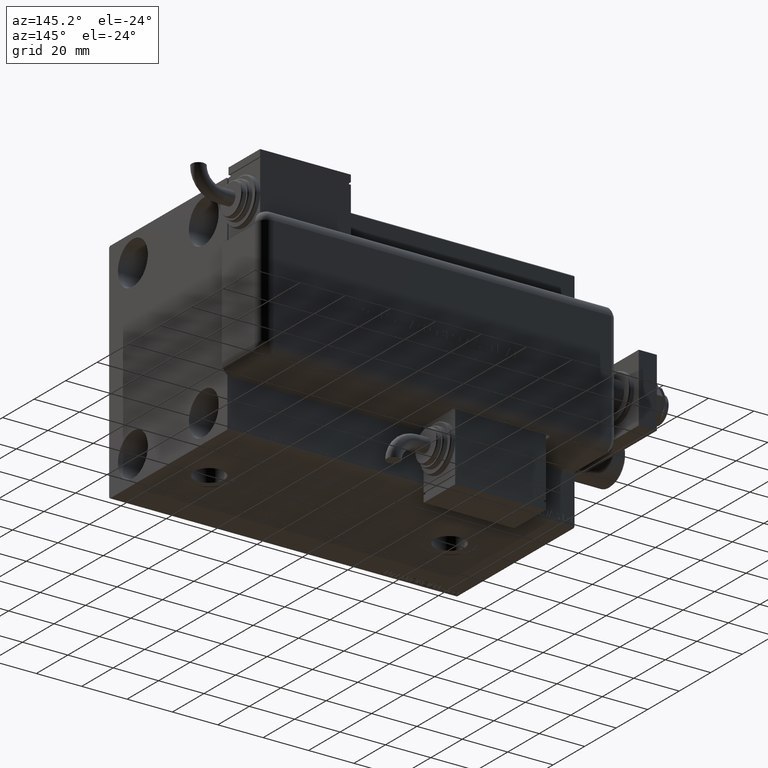
[diagram: clean part render]
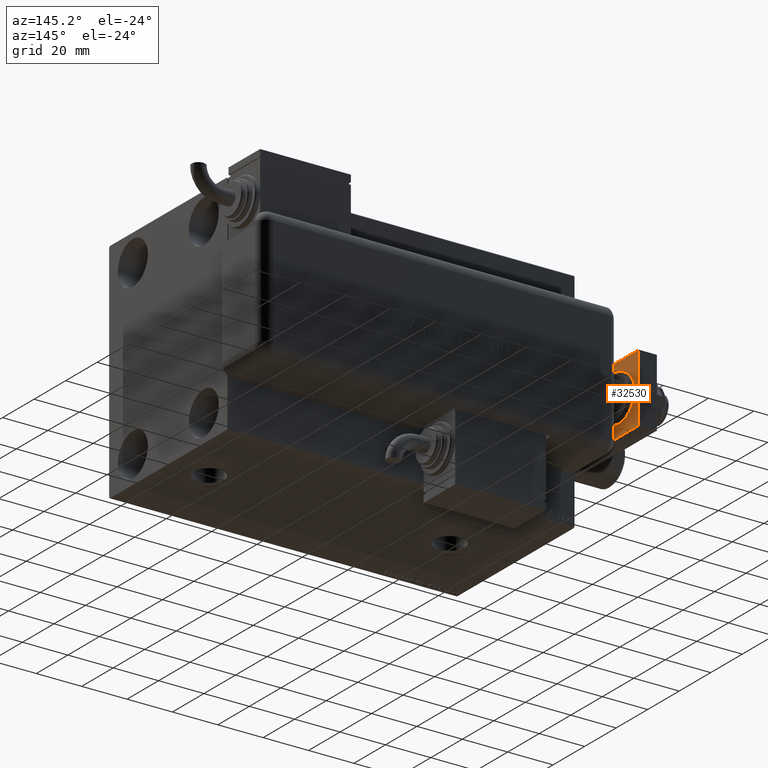
[diagram: same view with one face highlighted and labeled with its STEP entity id]
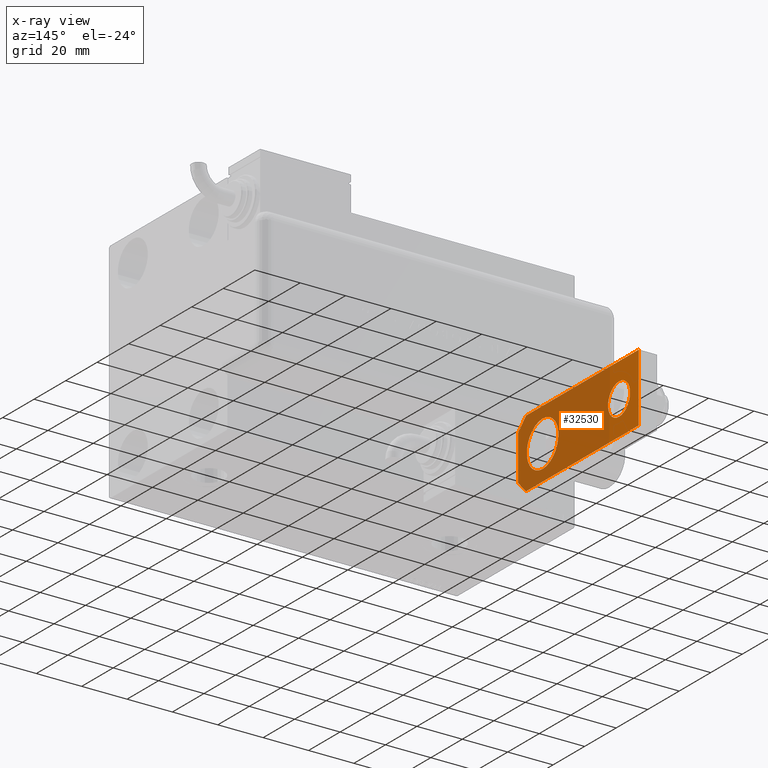
[diagram: x-ray of the same camera — body ghosted, the highlighted face saturated]
A machine part, auxiliary view. The second image highlights one B-rep face of the part: STEP entity #32530.
The next image is the same camera in x-ray: the body ghosted, the highlighted face saturated — about 77% of this face is hidden behind the body in this view.
In plain terms, the highlighted planar face has unit normal (1, 0, -0).
Its self-contained STEP definition (entity closure, byte-faithful):
#46 = PLANE ( 'NONE',  #12857 ) ;
#1040 = CIRCLE ( 'NONE', #35823, 7.000000000000000000 ) ;
#1156 = ORIENTED_EDGE ( 'NONE', *, *, #55451, .T. ) ;
#2516 = VECTOR ( 'NONE', #24640, 1000.000000000000000 ) ;
#2567 = VECTOR ( 'NONE', #24684, 1000.000000000000000 ) ;
#4956 = AXIS2_PLACEMENT_3D ( 'NONE', #16189, #29584, #34254 ) ;
#5305 = DIRECTION ( 'NONE',  ( 0.000000000000000000, 0.000000000000000000, 1.000000000000000000 ) ) ;
#5402 = ORIENTED_EDGE ( 'NONE', *, *, #21318, .T. ) ;
#5715 = EDGE_CURVE ( 'NONE', #18794, #32229, #58320, .T. ) ;
#6004 = CARTESIAN_POINT ( 'NONE',  ( 15.00000000000000355, 76.50000000000000000, 8.000000000000000000 ) ) ;
#6176 = CARTESIAN_POINT ( 'NONE',  ( 9.999999999999982236, 9.629649721936179265E-32, 8.000000000000000000 ) ) ;
#6606 = VECTOR ( 'NONE', #17741, 1000.000000000000000 ) ;
#6943 = CIRCLE ( 'NONE', #4956, 10.00000000000000711 ) ;
#7714 = CARTESIAN_POINT ( 'NONE',  ( -14.99999999999999822, 76.50000000000000000, 8.000000000000000000 ) ) ;
#8937 = DIRECTION ( 'NONE',  ( 0.000000000000000000, 0.000000000000000000, 1.000000000000000000 ) ) ;
#9659 = EDGE_CURVE ( 'NONE', #60931, #21351, #33214, .T. ) ;
#9788 = DIRECTION ( 'NONE',  ( 0.7071067811865489050, 0.7071067811865460184, -0.000000000000000000 ) ) ;
#10301 = DIRECTION ( 'NONE',  ( 1.000000000000000000, 0.000000000000000000, 0.000000000000000000 ) ) ;
#12857 = AXIS2_PLACEMENT_3D ( 'NONE', #14369, #18111, #46761 ) ;
#13592 = EDGE_LOOP ( 'NONE', ( #54426, #51902 ) ) ;
#13811 = CARTESIAN_POINT ( 'NONE',  ( -7.000000000000000000, 64.00000000000000000, 8.000000000000000000 ) ) ;
#13838 = LINE ( 'NONE', #14452, #35103 ) ;
#14369 = CARTESIAN_POINT ( 'NONE',  ( 0.000000000000000000, 0.000000000000000000, 8.000000000000000000 ) ) ;
#14452 = CARTESIAN_POINT ( 'NONE',  ( 4.999999999999970690, -4.999999999999991118, 8.000000000000000000 ) ) ;
#15525 = EDGE_CURVE ( 'NONE', #42371, #43254, #6943, .T. ) ;
#15619 = LINE ( 'NONE', #7714, #2516 ) ;
#16189 = CARTESIAN_POINT ( 'NONE',  ( 0.000000000000000000, 15.50000000000000000, 8.000000000000000000 ) ) ;
#17201 = CARTESIAN_POINT ( 'NONE',  ( 15.00000000000000355, 76.50000000000000000, 8.000000000000000000 ) ) ;
#17741 = DIRECTION ( 'NONE',  ( 1.000000000000000000, 0.000000000000000000, 0.000000000000000000 ) ) ;
#17978 = CARTESIAN_POINT ( 'NONE',  ( -5.000000000000026645, -5.000000000000005329, 8.000000000000000000 ) ) ;
#18111 = DIRECTION ( 'NONE',  ( -0.000000000000000000, 0.000000000000000000, 1.000000000000000000 ) ) ;
#18790 = CARTESIAN_POINT ( 'NONE',  ( -10.00000000000000711, 15.50000000000000000, 8.000000000000000000 ) ) ;
#18794 = VERTEX_POINT ( 'NONE', #13811 ) ;
#19426 = CARTESIAN_POINT ( 'NONE',  ( 7.000000000000000000, 64.00000000000000000, 8.000000000000000000 ) ) ;
#20695 = CARTESIAN_POINT ( 'NONE',  ( 15.00000000000000888, 9.629649721936179265E-32, 8.000000000000000000 ) ) ;
#21318 = EDGE_CURVE ( 'NONE', #21351, #34671, #51043, .T. ) ;
#21351 = VERTEX_POINT ( 'NONE', #52280 ) ;
#24640 = DIRECTION ( 'NONE',  ( -1.360567432138672328E-16, -1.000000000000000000, 0.000000000000000000 ) ) ;
#24684 = DIRECTION ( 'NONE',  ( -1.000000000000000000, 0.000000000000000000, 0.000000000000000000 ) ) ;
#25186 = CARTESIAN_POINT ( 'NONE',  ( 15.00000000000000888, 5.000000000000004441, 8.000000000000000000 ) ) ;
#25346 = DIRECTION ( 'NONE',  ( -6.802837160693361638E-17, 1.000000000000000000, 0.000000000000000000 ) ) ;
#27309 = DIRECTION ( 'NONE',  ( 1.000000000000000000, 0.000000000000000000, 0.000000000000000000 ) ) ;
#28219 = CARTESIAN_POINT ( 'NONE',  ( 1.963948872468190046E-17, 64.00000000000000000, 8.000000000000000000 ) ) ;
#28780 = ORIENTED_EDGE ( 'NONE', *, *, #48460, .T. ) ;
#29584 = DIRECTION ( 'NONE',  ( 0.000000000000000000, 0.000000000000000000, 1.000000000000000000 ) ) ;
#29884 = ORIENTED_EDGE ( 'NONE', *, *, #9659, .T. ) ;
#32110 = FACE_BOUND ( 'NONE', #61335, .T. ) ;
#32192 = AXIS2_PLACEMENT_3D ( 'NONE', #38431, #32290, #27309 ) ;
#32229 = VERTEX_POINT ( 'NONE', #19426 ) ;
#32290 = DIRECTION ( 'NONE',  ( 0.000000000000000000, 0.000000000000000000, 1.000000000000000000 ) ) ;
#32395 = ORIENTED_EDGE ( 'NONE', *, *, #50384, .F. ) ;
#32530 = ADVANCED_FACE ( 'NONE', ( #42695, #37711, #32110 ), #46, .T. ) ;
#32812 = EDGE_LOOP ( 'NONE', ( #41429, #29884, #5402, #28780, #49354, #1156 ) ) ;
#32908 = DIRECTION ( 'NONE',  ( 1.000000000000000000, 0.000000000000000000, 0.000000000000000000 ) ) ;
#33214 = LINE ( 'NONE', #17978, #58316 ) ;
#34254 = DIRECTION ( 'NONE',  ( 1.000000000000000000, 0.000000000000000000, 0.000000000000000000 ) ) ;
#34671 = VERTEX_POINT ( 'NONE', #6176 ) ;
#35103 = VECTOR ( 'NONE', #9788, 1000.000000000000114 ) ;
#35759 = EDGE_CURVE ( 'NONE', #32229, #18794, #1040, .T. ) ;
#35823 = AXIS2_PLACEMENT_3D ( 'NONE', #28219, #8937, #32908 ) ;
#37020 = CARTESIAN_POINT ( 'NONE',  ( -15.00000000000000888, 9.629649721936179265E-32, 8.000000000000000000 ) ) ;
#37711 = FACE_OUTER_BOUND ( 'NONE', #32812, .T. ) ;
#38431 = CARTESIAN_POINT ( 'NONE',  ( 0.000000000000000000, 15.50000000000000000, 8.000000000000000000 ) ) ;
#40322 = CARTESIAN_POINT ( 'NONE',  ( 10.00000000000000711, 15.50000000000000178, 8.000000000000000000 ) ) ;
#40521 = VERTEX_POINT ( 'NONE', #25186 ) ;
#41429 = ORIENTED_EDGE ( 'NONE', *, *, #57410, .T. ) ;
#41693 = CARTESIAN_POINT ( 'NONE',  ( -15.00000000000000888, 5.000000000000018652, 8.000000000000000000 ) ) ;
#42237 = DIRECTION ( 'NONE',  ( 0.7071067811865460184, -0.7071067811865489050, 0.000000000000000000 ) ) ;
#42371 = VERTEX_POINT ( 'NONE', #18790 ) ;
#42695 = FACE_BOUND ( 'NONE', #13592, .T. ) ;
#43254 = VERTEX_POINT ( 'NONE', #40322 ) ;
#43283 = CARTESIAN_POINT ( 'NONE',  ( 1.963948872468190046E-17, 64.00000000000000000, 8.000000000000000000 ) ) ;
#44069 = CARTESIAN_POINT ( 'NONE',  ( -14.99999999999999822, 76.50000000000000000, 8.000000000000000000 ) ) ;
#44284 = LINE ( 'NONE', #6004, #2567 ) ;
#46761 = DIRECTION ( 'NONE',  ( 1.000000000000000000, 0.000000000000000000, 0.000000000000000000 ) ) ;
#47279 = VECTOR ( 'NONE', #25346, 1000.000000000000000 ) ;
#48460 = EDGE_CURVE ( 'NONE', #34671, #40521, #13838, .T. ) ;
#49354 = ORIENTED_EDGE ( 'NONE', *, *, #54350, .T. ) ;
#50384 = EDGE_CURVE ( 'NONE', #43254, #42371, #57060, .T. ) ;
#50956 = ORIENTED_EDGE ( 'NONE', *, *, #15525, .F. ) ;
#51043 = LINE ( 'NONE', #37020, #6606 ) ;
#51902 = ORIENTED_EDGE ( 'NONE', *, *, #35759, .F. ) ;
#52280 = CARTESIAN_POINT ( 'NONE',  ( -10.00000000000001066, 9.629649721936179265E-32, 8.000000000000000000 ) ) ;
#53217 = AXIS2_PLACEMENT_3D ( 'NONE', #43283, #5305, #10301 ) ;
#54350 = EDGE_CURVE ( 'NONE', #40521, #60570, #58969, .T. ) ;
#54426 = ORIENTED_EDGE ( 'NONE', *, *, #5715, .F. ) ;
#55451 = EDGE_CURVE ( 'NONE', #60570, #56054, #44284, .T. ) ;
#56054 = VERTEX_POINT ( 'NONE', #44069 ) ;
#57060 = CIRCLE ( 'NONE', #32192, 10.00000000000000711 ) ;
#57410 = EDGE_CURVE ( 'NONE', #56054, #60931, #15619, .T. ) ;
#58316 = VECTOR ( 'NONE', #42237, 1000.000000000000114 ) ;
#58320 = CIRCLE ( 'NONE', #53217, 7.000000000000000000 ) ;
#58969 = LINE ( 'NONE', #20695, #47279 ) ;
#60570 = VERTEX_POINT ( 'NONE', #17201 ) ;
#60931 = VERTEX_POINT ( 'NONE', #41693 ) ;
#61335 = EDGE_LOOP ( 'NONE', ( #50956, #32395 ) ) ;